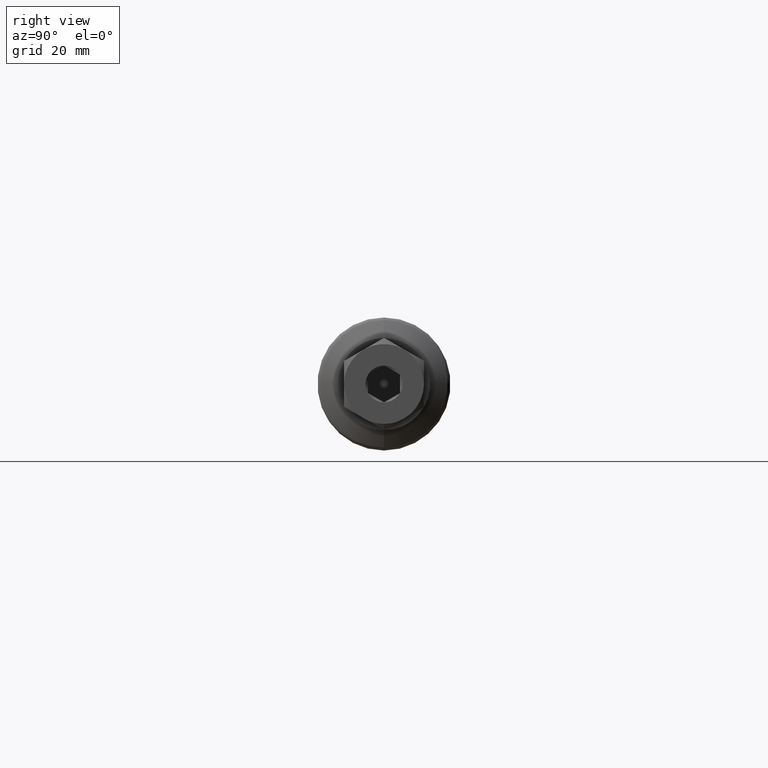
[diagram: clean part render]
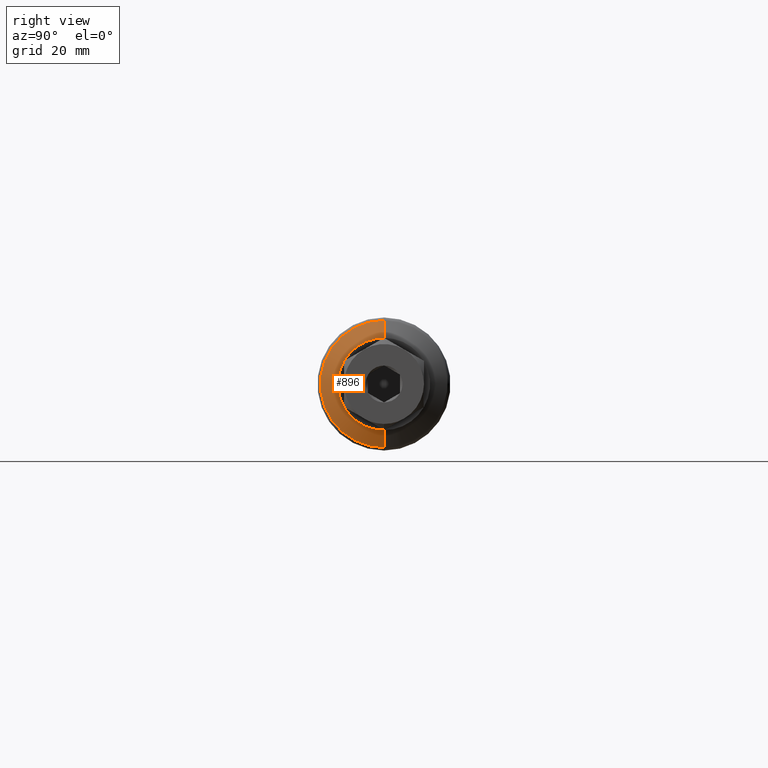
[diagram: same view with one face highlighted and labeled with its STEP entity id]
A machine part, right view. The second image highlights one B-rep face of the part: STEP entity #896.
In plain terms, the highlighted conical surface has half-angle 63.613 deg.
Its self-contained STEP definition (entity closure, byte-faithful):
#19 = DIRECTION ( 'NONE',  ( -1.000000000000000000, -0.000000000000000000, -0.000000000000000000 ) ) ;
#65 = VERTEX_POINT ( 'NONE', #3217 ) ;
#161 = CARTESIAN_POINT ( 'NONE',  ( 128.8100000000000023, 0.000000000000000000, 0.000000000000000000 ) ) ;
#164 = CARTESIAN_POINT ( 'NONE',  ( 126.9049999999999869, 1.530808498934192113E-15, -12.50000000000000533 ) ) ;
#238 = DIRECTION ( 'NONE',  ( -1.000000000000000000, -0.000000000000000000, -0.000000000000000000 ) ) ;
#256 = CARTESIAN_POINT ( 'NONE',  ( 128.8100000000000023, 0.000000000000000000, 0.000000000000000000 ) ) ;
#337 = DIRECTION ( 'NONE',  ( -0.4444355544454668960, 0.000000000000000000, 0.8958108270973009768 ) ) ;
#420 = ORIENTED_EDGE ( 'NONE', *, *, #2977, .F. ) ;
#481 = CIRCLE ( 'NONE', #3223, 8.660254037844389075 ) ;
#566 = VECTOR ( 'NONE', #943, 1000.000000000000000 ) ;
#578 = DIRECTION ( 'NONE',  ( -1.000000000000000000, -0.000000000000000000, -0.000000000000000000 ) ) ;
#590 = EDGE_CURVE ( 'NONE', #2533, #1086, #1130, .T. ) ;
#609 = ORIENTED_EDGE ( 'NONE', *, *, #1538, .T. ) ;
#610 = DIRECTION ( 'NONE',  ( 0.000000000000000000, 0.000000000000000000, 1.000000000000000000 ) ) ;
#666 = AXIS2_PLACEMENT_3D ( 'NONE', #256, #238, #2884 ) ;
#765 = CARTESIAN_POINT ( 'NONE',  ( 127.1806302836730396, 0.000000000000000000, 0.000000000000000000 ) ) ;
#833 = CIRCLE ( 'NONE', #666, 8.660254037844389075 ) ;
#881 = EDGE_CURVE ( 'NONE', #1317, #2243, #2930, .T. ) ;
#891 = CONICAL_SURFACE ( 'NONE', #3254, 12.50000000000000533, 1.110252259107116224 ) ;
#896 = ADVANCED_FACE ( 'NONE', ( #1391 ), #891, .T. ) ;
#943 = DIRECTION ( 'NONE',  ( -0.4444355544454668960, 1.097051862046252663E-16, -0.8958108270973009768 ) ) ;
#1023 = CARTESIAN_POINT ( 'NONE',  ( 127.1806302836730396, 0.000000000000000000, 11.94443555444545879 ) ) ;
#1056 = DIRECTION ( 'NONE',  ( 0.000000000000000000, 0.000000000000000000, 1.000000000000000000 ) ) ;
#1086 = VERTEX_POINT ( 'NONE', #1154 ) ;
#1110 = CIRCLE ( 'NONE', #1271, 11.94443555444546590 ) ;
#1130 = CIRCLE ( 'NONE', #2775, 8.660254037844389075 ) ;
#1154 = CARTESIAN_POINT ( 'NONE',  ( 128.8100000000000023, -7.500000000000000000, 4.330127018922197202 ) ) ;
#1172 = CARTESIAN_POINT ( 'NONE',  ( 126.9049999999999869, 0.000000000000000000, 0.000000000000000000 ) ) ;
#1193 = ORIENTED_EDGE ( 'NONE', *, *, #3213, .T. ) ;
#1271 = AXIS2_PLACEMENT_3D ( 'NONE', #765, #1817, #2867 ) ;
#1279 = EDGE_LOOP ( 'NONE', ( #420, #2690, #1546, #609, #1687, #1193 ) ) ;
#1313 = CARTESIAN_POINT ( 'NONE',  ( 128.8100000000000023, 0.000000000000000000, 0.000000000000000000 ) ) ;
#1317 = VERTEX_POINT ( 'NONE', #2102 ) ;
#1391 = FACE_OUTER_BOUND ( 'NONE', #1279, .T. ) ;
#1538 = EDGE_CURVE ( 'NONE', #1086, #1317, #481, .T. ) ;
#1546 = ORIENTED_EDGE ( 'NONE', *, *, #590, .T. ) ;
#1687 = ORIENTED_EDGE ( 'NONE', *, *, #881, .T. ) ;
#1817 = DIRECTION ( 'NONE',  ( 1.000000000000000000, 0.000000000000000000, 0.000000000000000000 ) ) ;
#1955 = VERTEX_POINT ( 'NONE', #2922 ) ;
#2008 = DIRECTION ( 'NONE',  ( -1.000000000000000000, -0.000000000000000000, -0.000000000000000000 ) ) ;
#2027 = DIRECTION ( 'NONE',  ( 0.000000000000000000, 0.000000000000000000, 1.000000000000000000 ) ) ;
#2102 = CARTESIAN_POINT ( 'NONE',  ( 128.8100000000000023, 3.903127820947815962E-15, 8.660254037844389075 ) ) ;
#2212 = CARTESIAN_POINT ( 'NONE',  ( 128.8100000000000023, -7.500000000000003553, -4.330127018922190096 ) ) ;
#2243 = VERTEX_POINT ( 'NONE', #1023 ) ;
#2533 = VERTEX_POINT ( 'NONE', #2212 ) ;
#2591 = VECTOR ( 'NONE', #337, 1000.000000000000000 ) ;
#2690 = ORIENTED_EDGE ( 'NONE', *, *, #3194, .T. ) ;
#2775 = AXIS2_PLACEMENT_3D ( 'NONE', #161, #2008, #2027 ) ;
#2867 = DIRECTION ( 'NONE',  ( 0.000000000000000000, 0.000000000000000000, 1.000000000000000000 ) ) ;
#2884 = DIRECTION ( 'NONE',  ( 0.000000000000000000, 0.000000000000000000, 1.000000000000000000 ) ) ;
#2922 = CARTESIAN_POINT ( 'NONE',  ( 127.1806302836730396, 1.462771476937346964E-15, -11.94443555444545879 ) ) ;
#2930 = LINE ( 'NONE', #2984, #2591 ) ;
#2977 = EDGE_CURVE ( 'NONE', #65, #1955, #3058, .T. ) ;
#2984 = CARTESIAN_POINT ( 'NONE',  ( 126.9049999999999869, 0.000000000000000000, 12.50000000000000533 ) ) ;
#3058 = LINE ( 'NONE', #164, #566 ) ;
#3194 = EDGE_CURVE ( 'NONE', #65, #2533, #833, .T. ) ;
#3213 = EDGE_CURVE ( 'NONE', #2243, #1955, #1110, .T. ) ;
#3217 = CARTESIAN_POINT ( 'NONE',  ( 128.8100000000000023, 0.000000000000000000, -8.660254037844387298 ) ) ;
#3223 = AXIS2_PLACEMENT_3D ( 'NONE', #1313, #19, #1056 ) ;
#3254 = AXIS2_PLACEMENT_3D ( 'NONE', #1172, #578, #610 ) ;